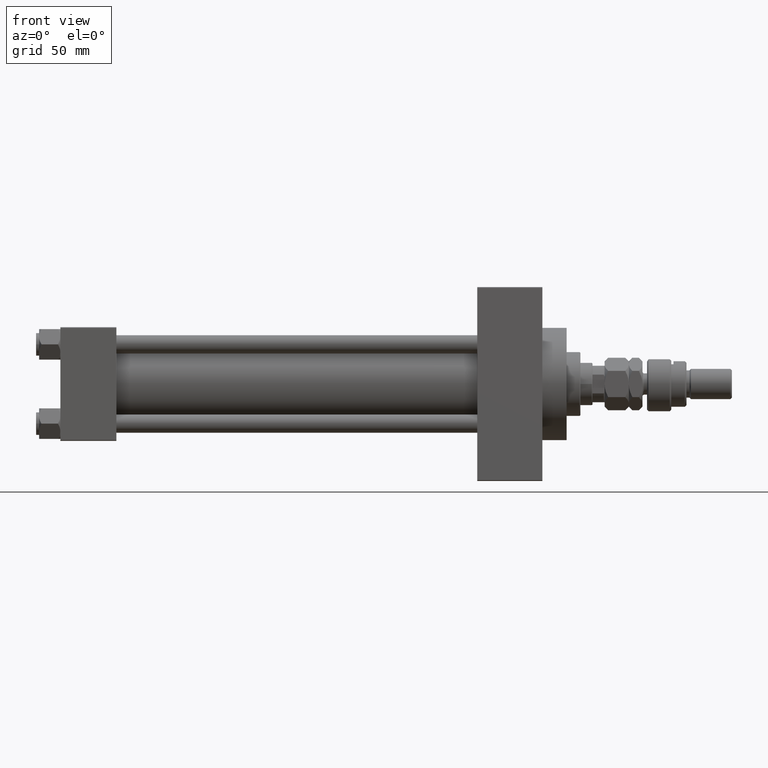
[diagram: clean part render]
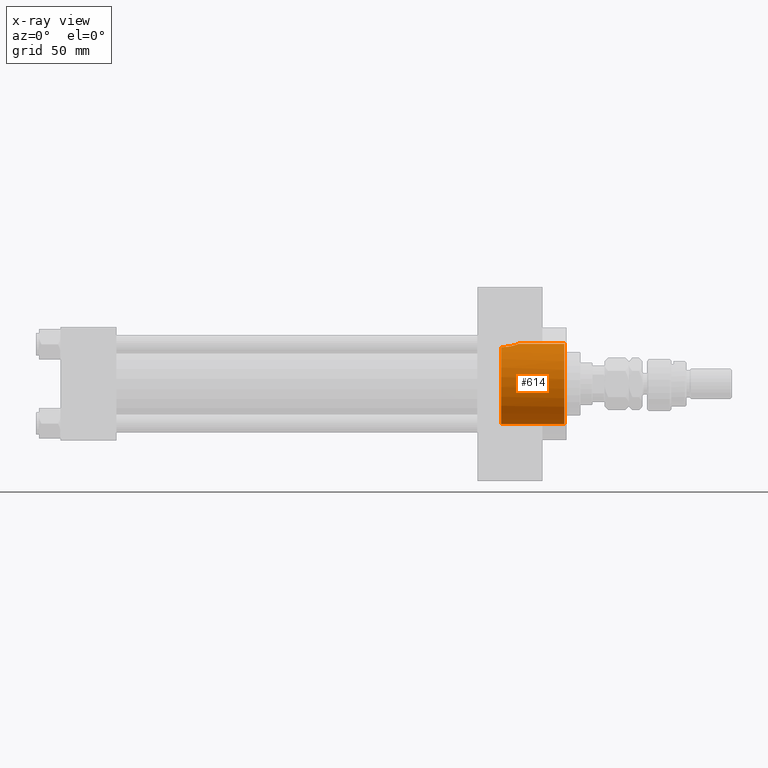
[diagram: x-ray — body ghosted, one internal face saturated and labeled with its STEP entity id]
A machine part, front view, then the same camera in x-ray: the body is ghosted and one INTERNAL B-rep face — a face not visible from any outside direction — is saturated and labeled: STEP entity #614.
In plain terms, the highlighted cylindrical surface (partial cylindrical patch) has radius 26.5 mm, axis along (1, 0, 0).
Its self-contained STEP definition (entity closure, byte-faithful):
#573 = CARTESIAN_POINT ( 'NONE',  ( 302.4800000000001319, 1.369086566889278633E-14, 26.50000000000006750 ) ) ;
#614 = ADVANCED_FACE ( 'NONE', ( #28135 ), #35502, .F. ) ;
#801 = CARTESIAN_POINT ( 'NONE',  ( 302.4800000000001319, 1.369086566889278633E-14, 26.50000000000006750 ) ) ;
#814 = CARTESIAN_POINT ( 'NONE',  ( 301.6993435614955956, -3.985990130492278460, 26.20070574291653998 ) ) ;
#975 = VERTEX_POINT ( 'NONE', #27445 ) ;
#1072 = CARTESIAN_POINT ( 'NONE',  ( 301.2276638786152034, -4.981583166679977026, 26.02957788900645397 ) ) ;
#1089 = CARTESIAN_POINT ( 'NONE',  ( 290.7399999999999523, 3.245314017740486554E-15, 26.50000000000000355 ) ) ;
#2841 = EDGE_CURVE ( 'NONE', #28747, #36054, #39038, .T. ) ;
#3713 = CARTESIAN_POINT ( 'NONE',  ( 296.8603660912149280, -9.291949300782571086, 24.81826977973610582 ) ) ;
#4492 = ORIENTED_EDGE ( 'NONE', *, *, #36643, .T. ) ;
#4621 = CARTESIAN_POINT ( 'NONE',  ( 299.9981355541606263, -6.811571481472472378, 25.61680511670813942 ) ) ;
#4949 = DIRECTION ( 'NONE',  ( 1.000000000000000000, -0.000000000000000000, -0.000000000000000000 ) ) ;
#5692 = CARTESIAN_POINT ( 'NONE',  ( 290.7399999999999523, 0.000000000000000000, -26.50000000000000355 ) ) ;
#6379 = VECTOR ( 'NONE', #24215, 1000.000000000000000 ) ;
#6503 = DIRECTION ( 'NONE',  ( 0.000000000000000000, 0.000000000000000000, -1.000000000000000000 ) ) ;
#6765 = CARTESIAN_POINT ( 'NONE',  ( 291.4868983507926714, -10.49443499905853372, 24.33364968799253347 ) ) ;
#7529 = CARTESIAN_POINT ( 'NONE',  ( 290.7399999999999523, -10.40398000767013542, 24.37226292324945831 ) ) ;
#8799 = DIRECTION ( 'NONE',  ( 0.000000000000000000, 0.000000000000000000, -1.000000000000000000 ) ) ;
#9190 = CARTESIAN_POINT ( 'NONE',  ( 300.6508763872860186, -5.926808359427496953, 25.83050513016100069 ) ) ;
#10780 = AXIS2_PLACEMENT_3D ( 'NONE', #24815, #28377, #8799 ) ;
#10887 = EDGE_CURVE ( 'NONE', #30186, #18781, #33169, .T. ) ;
#10965 = ORIENTED_EDGE ( 'NONE', *, *, #10887, .T. ) ;
#11079 = CARTESIAN_POINT ( 'NONE',  ( 295.8600678267363264, -9.750145953289933942, 24.64162310621548357 ) ) ;
#12251 = CARTESIAN_POINT ( 'NONE',  ( 302.4011065554138327, -1.483758503940585394, 26.46850309434598714 ) ) ;
#12266 = LINE ( 'NONE', #1089, #6379 ) ;
#12506 = CARTESIAN_POINT ( 'NONE',  ( 298.6874981071936190, -8.077221093107597838, 25.24030799844106099 ) ) ;
#12655 = ORIENTED_EDGE ( 'NONE', *, *, #18572, .F. ) ;
#12995 = CARTESIAN_POINT ( 'NONE',  ( 302.4799999999999613, -0.7466733969459847797, 26.50000000000001776 ) ) ;
#13061 = VECTOR ( 'NONE', #4949, 1000.000000000000000 ) ;
#13262 = EDGE_LOOP ( 'NONE', ( #35235, #4492, #10965, #25859, #12655 ) ) ;
#17155 = CARTESIAN_POINT ( 'NONE',  ( 332.4999999999999432, 0.000000000000000000, -26.50000000000000355 ) ) ;
#18467 = CARTESIAN_POINT ( 'NONE',  ( 296.5335921408432114, -9.455792512420352125, 24.75606841526505519 ) ) ;
#18572 = EDGE_CURVE ( 'NONE', #36054, #975, #39005, .T. ) ;
#18781 = VERTEX_POINT ( 'NONE', #17155 ) ;
#20144 = CARTESIAN_POINT ( 'NONE',  ( 302.1654842721632690, -2.575241489874374512, 26.37710048711162969 ) ) ;
#20965 = LINE ( 'NONE', #5692, #13061 ) ;
#23587 = AXIS2_PLACEMENT_3D ( 'NONE', #37043, #37535, #6503 ) ;
#24215 = DIRECTION ( 'NONE',  ( 1.000000000000000000, -0.000000000000000000, -0.000000000000000000 ) ) ;
#24245 = AXIS2_PLACEMENT_3D ( 'NONE', #48759, #29463, #44968 ) ;
#24439 = CARTESIAN_POINT ( 'NONE',  ( 290.7399999999999523, -10.40398000767013542, 24.37226292324945831 ) ) ;
#24815 = CARTESIAN_POINT ( 'NONE',  ( 290.7399999999999523, 0.000000000000000000, 0.000000000000000000 ) ) ;
#25859 = ORIENTED_EDGE ( 'NONE', *, *, #43461, .F. ) ;
#26856 = CARTESIAN_POINT ( 'NONE',  ( 294.4459359432478323, -10.21777125531390773, 24.45211332338677579 ) ) ;
#27445 = CARTESIAN_POINT ( 'NONE',  ( 290.7399999999999523, 0.000000000000000000, -26.50000000000000355 ) ) ;
#28135 = FACE_OUTER_BOUND ( 'NONE', #13262, .T. ) ;
#28272 = CARTESIAN_POINT ( 'NONE',  ( 301.8335546017132174, -3.642695553053319824, 26.25084325021121501 ) ) ;
#28377 = DIRECTION ( 'NONE',  ( 1.000000000000000000, -0.000000000000000000, -0.000000000000000000 ) ) ;
#28521 = CARTESIAN_POINT ( 'NONE',  ( 302.0665133812162821, -2.938253791439191964, 26.33899517628734088 ) ) ;
#28747 = VERTEX_POINT ( 'NONE', #801 ) ;
#29463 = DIRECTION ( 'NONE',  ( 1.000000000000000000, 0.000000000000000000, 0.000000000000000000 ) ) ;
#30186 = VERTEX_POINT ( 'NONE', #41379 ) ;
#32097 = CARTESIAN_POINT ( 'NONE',  ( 298.3983008714430412, -8.308216825530779559, 25.16494175890554530 ) ) ;
#33169 = CIRCLE ( 'NONE', #24245, 26.50000000000000355 ) ;
#34221 = CARTESIAN_POINT ( 'NONE',  ( 295.5115735695663943, -9.881194972351266870, 24.58915736193082324 ) ) ;
#35235 = ORIENTED_EDGE ( 'NONE', *, *, #2841, .F. ) ;
#35502 = CYLINDRICAL_SURFACE ( 'NONE', #10780, 26.50000000000000355 ) ;
#36054 = VERTEX_POINT ( 'NONE', #24439 ) ;
#36643 = EDGE_CURVE ( 'NONE', #28747, #30186, #12266, .T. ) ;
#37043 = CARTESIAN_POINT ( 'NONE',  ( 290.7399999999999523, 0.000000000000000000, 0.000000000000000000 ) ) ;
#37535 = DIRECTION ( 'NONE',  ( 1.000000000000000000, 0.000000000000000000, 0.000000000000000000 ) ) ;
#39005 = CIRCLE ( 'NONE', #23587, 26.50000000000000355 ) ;
#39038 = B_SPLINE_CURVE_WITH_KNOTS ( 'NONE', 3,
 ( #573, #12995, #12251, #20144, #28521, #28272, #814, #44022, #1072, #43282, #9190, #4621, #47343, #12506, #32097, #49713, #45673, #3713, #18467, #11079, #34221, #26856, #49461, #42366, #6765, #7529 ),
 .UNSPECIFIED., .F., .F.,
 ( 4, 2, 2, 2, 2, 2, 2, 2, 2, 2, 2, 2, 4 ),
 ( 0.01781170071191076620, 0.02003745927526340981, 0.02115033855693971079, 0.02226321783861601525, 0.02337609712029231623, 0.02448897640196862069, 0.02671473496532131980, 0.02782761424699772834, 0.02894049352867413688, 0.03005337281035054542, 0.03116625209202695396, 0.03339201065537961144, 0.03561776921873227586 ),
 .UNSPECIFIED. ) ;
#41379 = CARTESIAN_POINT ( 'NONE',  ( 332.4999999999999432, 3.245314017740486554E-15, 26.50000000000000355 ) ) ;
#42366 = CARTESIAN_POINT ( 'NONE',  ( 292.2451057705675339, -10.50334255171940434, 24.32972513250578217 ) ) ;
#43282 = CARTESIAN_POINT ( 'NONE',  ( 300.8553297434206115, -5.616857363200519870, 25.89992295911057241 ) ) ;
#43461 = EDGE_CURVE ( 'NONE', #975, #18781, #20965, .T. ) ;
#44022 = CARTESIAN_POINT ( 'NONE',  ( 301.3963988635402984, -4.655434592126336035, 26.09007526830299284 ) ) ;
#44968 = DIRECTION ( 'NONE',  ( 0.000000000000000000, 0.000000000000000000, -1.000000000000000000 ) ) ;
#45673 = CARTESIAN_POINT ( 'NONE',  ( 297.4947120380321621, -8.931495953537172738, 24.95025484238638569 ) ) ;
#47343 = CARTESIAN_POINT ( 'NONE',  ( 299.5076201536011240, -7.348534936426574404, 25.46581292754182968 ) ) ;
#48759 = CARTESIAN_POINT ( 'NONE',  ( 332.4999999999999432, 0.000000000000000000, 0.000000000000000000 ) ) ;
#49461 = CARTESIAN_POINT ( 'NONE',  ( 293.7216423275558554, -10.36418010715238402, 24.38933169417624924 ) ) ;
#49713 = CARTESIAN_POINT ( 'NONE',  ( 297.8022832347252233, -8.734885810677026186, 25.02004257437571866 ) ) ;